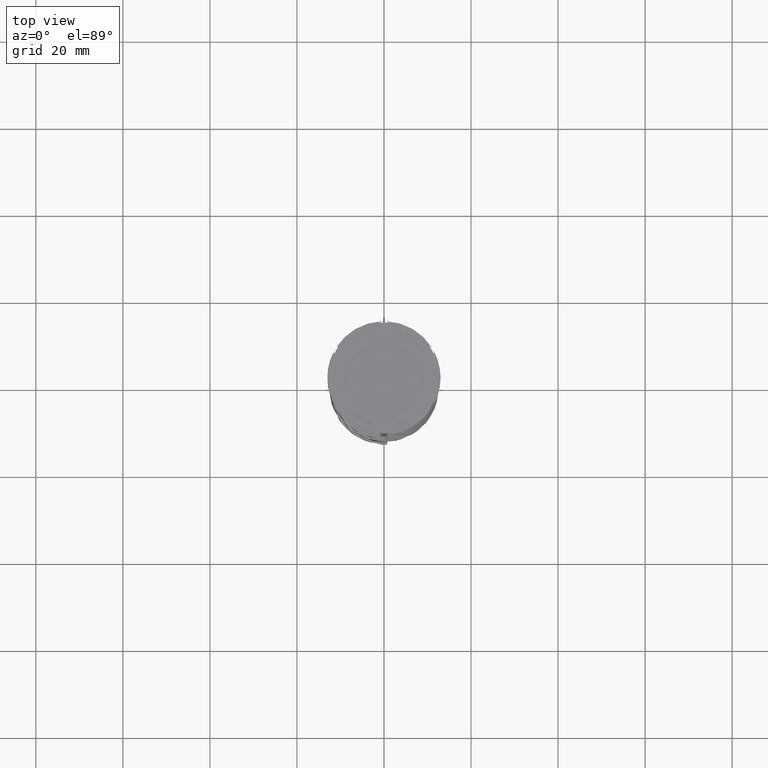
[diagram: clean part render]
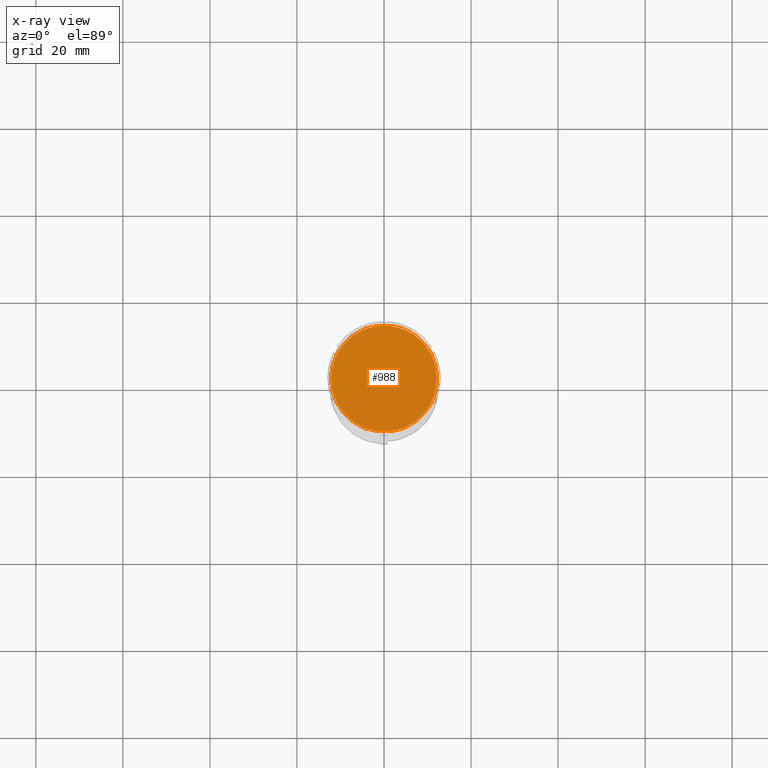
[diagram: x-ray — body ghosted, one internal face saturated and labeled with its STEP entity id]
A machine part, top view, then the same camera in x-ray: the body is ghosted and one INTERNAL B-rep face — a face not visible from any outside direction — is saturated and labeled: STEP entity #988.
In plain terms, the highlighted planar face has unit normal (0, 0, -1).
Its self-contained STEP definition (entity closure, byte-faithful):
#65 = CARTESIAN_POINT ( 'NONE',  ( -12.20000000000000639, 0.000000000000000000, -12.00000000000000000 ) ) ;
#289 = DIRECTION ( 'NONE',  ( -1.000000000000000000, 0.000000000000000000, 0.000000000000000000 ) ) ;
#338 = DIRECTION ( 'NONE',  ( -1.000000000000000000, 0.000000000000000000, 0.000000000000000000 ) ) ;
#385 = DIRECTION ( 'NONE',  ( -0.000000000000000000, -0.000000000000000000, 1.000000000000000000 ) ) ;
#415 = AXIS2_PLACEMENT_3D ( 'NONE', #3120, #4084, #2535 ) ;
#422 = EDGE_LOOP ( 'NONE', ( #3669, #3353 ) ) ;
#559 = AXIS2_PLACEMENT_3D ( 'NONE', #2211, #2843, #289 ) ;
#631 = CIRCLE ( 'NONE', #559, 12.20000000000000639 ) ;
#656 = CARTESIAN_POINT ( 'NONE',  ( 0.000000000000000000, 0.000000000000000000, -12.00000000000000000 ) ) ;
#765 = AXIS2_PLACEMENT_3D ( 'NONE', #656, #385, #338 ) ;
#988 = ADVANCED_FACE ( 'NONE', ( #1567 ), #1252, .F. ) ;
#1252 = PLANE ( 'NONE',  #415 ) ;
#1486 = CIRCLE ( 'NONE', #765, 12.20000000000000639 ) ;
#1567 = FACE_OUTER_BOUND ( 'NONE', #422, .T. ) ;
#2160 = VERTEX_POINT ( 'NONE', #3352 ) ;
#2211 = CARTESIAN_POINT ( 'NONE',  ( 0.000000000000000000, 0.000000000000000000, -12.00000000000000000 ) ) ;
#2535 = DIRECTION ( 'NONE',  ( -1.000000000000000000, 0.000000000000000000, -0.000000000000000000 ) ) ;
#2843 = DIRECTION ( 'NONE',  ( -0.000000000000000000, -0.000000000000000000, 1.000000000000000000 ) ) ;
#3120 = CARTESIAN_POINT ( 'NONE',  ( 0.000000000000000000, 0.000000000000000000, -12.00000000000000000 ) ) ;
#3352 = CARTESIAN_POINT ( 'NONE',  ( 12.20000000000000639, 1.512438796946981880E-15, -12.00000000000000000 ) ) ;
#3353 = ORIENTED_EDGE ( 'NONE', *, *, #3840, .T. ) ;
#3395 = EDGE_CURVE ( 'NONE', #3906, #2160, #1486, .T. ) ;
#3669 = ORIENTED_EDGE ( 'NONE', *, *, #3395, .T. ) ;
#3840 = EDGE_CURVE ( 'NONE', #2160, #3906, #631, .T. ) ;
#3906 = VERTEX_POINT ( 'NONE', #65 ) ;
#4084 = DIRECTION ( 'NONE',  ( 0.000000000000000000, 0.000000000000000000, -1.000000000000000000 ) ) ;